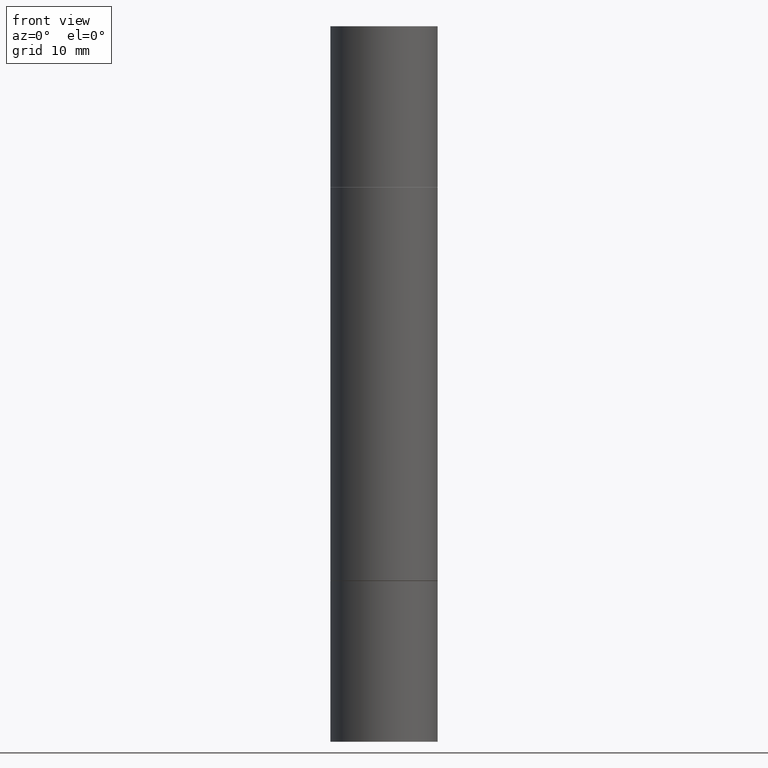
[diagram: clean part render]
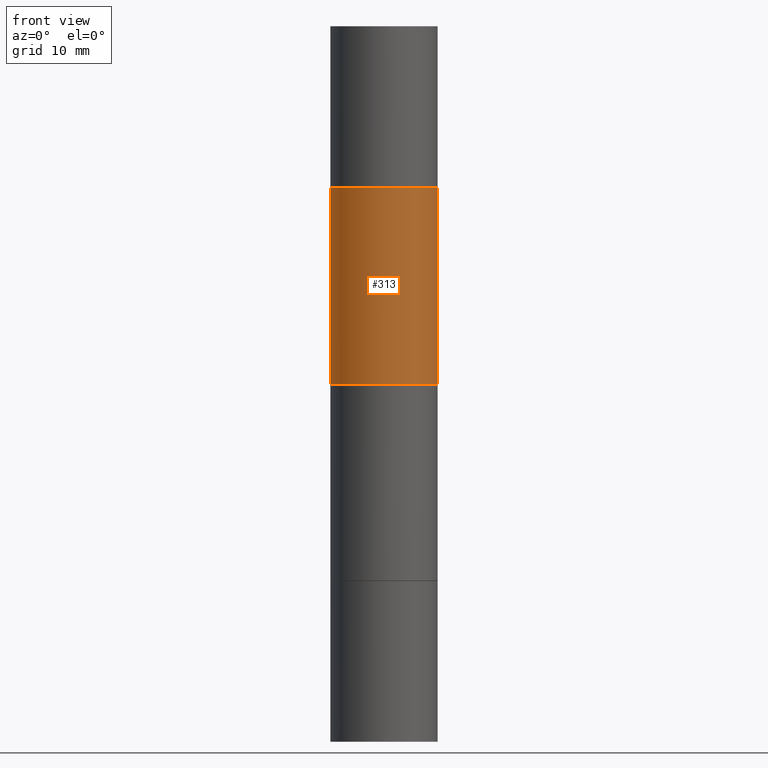
[diagram: same view with one face highlighted and labeled with its STEP entity id]
A machine part, front view. The second image highlights one B-rep face of the part: STEP entity #313.
In plain terms, the highlighted cylindrical surface (partial cylindrical patch) has radius 4.7625 mm, axis along (-0, -0, -1).
Its self-contained STEP definition (entity closure, byte-faithful):
#7 = AXIS2_PLACEMENT_3D ( 'NONE', #132, #411, #672 ) ;
#24 = CARTESIAN_POINT ( 'NONE',  ( 0.1874999999999999167, -4.473849319252078646E-15, -1.249999999999999778 ) ) ;
#26 = DIRECTION ( 'NONE',  ( -0.000000000000000000, -3.492185875197449130E-15, -1.000000000000000000 ) ) ;
#29 = FACE_OUTER_BOUND ( 'NONE', #553, .T. ) ;
#32 = VECTOR ( 'NONE', #562, 39.37007874015748143 ) ;
#38 = CARTESIAN_POINT ( 'NONE',  ( -0.1874999999999999167, -7.444121313411459473E-15, -2.499999999999999556 ) ) ;
#57 = AXIS2_PLACEMENT_3D ( 'NONE', #631, #207, #93 ) ;
#59 = ORIENTED_EDGE ( 'NONE', *, *, #590, .F. ) ;
#91 = CARTESIAN_POINT ( 'NONE',  ( 0.1874999999999999167, -1.003977019005979665E-14, -2.499999999999999556 ) ) ;
#93 = DIRECTION ( 'NONE',  ( 1.000000000000000000, -6.982962677686266711E-15, 0.000000000000000000 ) ) ;
#100 = EDGE_CURVE ( 'NONE', #483, #489, #564, .T. ) ;
#132 = CARTESIAN_POINT ( 'NONE',  ( 0.000000000000000000, -8.730464687993621641E-15, -2.499999999999999556 ) ) ;
#196 = EDGE_CURVE ( 'NONE', #339, #483, #525, .T. ) ;
#207 = DIRECTION ( 'NONE',  ( 2.445468806185136597E-29, 3.492890411551752677E-15, 1.000000000000000000 ) ) ;
#248 = DIRECTION ( 'NONE',  ( -2.445468806185136877E-29, -3.492890411551753071E-15, -1.000000000000000000 ) ) ;
#273 = ORIENTED_EDGE ( 'NONE', *, *, #100, .F. ) ;
#295 = CARTESIAN_POINT ( 'NONE',  ( 3.056836007731420185E-29, -4.364351673553931682E-15, -1.249999999999999778 ) ) ;
#313 = ADVANCED_FACE ( 'NONE', ( #29 ), #610, .T. ) ;
#339 = VERTEX_POINT ( 'NONE', #374 ) ;
#344 = VECTOR ( 'NONE', #248, 39.37007874015748143 ) ;
#357 = LINE ( 'NONE', #38, #344 ) ;
#374 = CARTESIAN_POINT ( 'NONE',  ( -0.1875000000000000278, -6.783925862357143136E-16, -0.5629999999999997229 ) ) ;
#389 = ORIENTED_EDGE ( 'NONE', *, *, #196, .F. ) ;
#401 = AXIS2_PLACEMENT_3D ( 'NONE', #295, #26, #586 ) ;
#411 = DIRECTION ( 'NONE',  ( -2.445468806185136597E-29, -3.492890411551752677E-15, -1.000000000000000000 ) ) ;
#483 = VERTEX_POINT ( 'NONE', #497 ) ;
#489 = VERTEX_POINT ( 'NONE', #24 ) ;
#497 = CARTESIAN_POINT ( 'NONE',  ( 0.1875000000000000278, -3.274041462884052574E-15, -0.5629999999999997229 ) ) ;
#518 = CIRCLE ( 'NONE', #401, 0.1874999999999999167 ) ;
#525 = CIRCLE ( 'NONE', #57, 0.1875000000000000278 ) ;
#536 = VERTEX_POINT ( 'NONE', #668 ) ;
#537 = EDGE_CURVE ( 'NONE', #339, #536, #357, .T. ) ;
#553 = EDGE_LOOP ( 'NONE', ( #389, #627, #59, #273 ) ) ;
#562 = DIRECTION ( 'NONE',  ( -2.445468806185136877E-29, -3.492890411551753071E-15, -1.000000000000000000 ) ) ;
#564 = LINE ( 'NONE', #91, #32 ) ;
#586 = DIRECTION ( 'NONE',  ( 0.000000000000000000, 1.000000000000000000, -2.913971193241881950E-15 ) ) ;
#590 = EDGE_CURVE ( 'NONE', #489, #536, #518, .T. ) ;
#610 = CYLINDRICAL_SURFACE ( 'NONE', #7, 0.1874999999999999167 ) ;
#627 = ORIENTED_EDGE ( 'NONE', *, *, #537, .T. ) ;
#631 = CARTESIAN_POINT ( 'NONE',  ( 4.736873077580609355E-29, -1.964735960817877172E-15, -0.5629999999999997229 ) ) ;
#668 = CARTESIAN_POINT ( 'NONE',  ( -0.1874999999999999167, -1.878200442603741470E-15, -1.249999999999999778 ) ) ;
#672 = DIRECTION ( 'NONE',  ( 1.000000000000000000, -6.982962677686270655E-15, 0.000000000000000000 ) ) ;